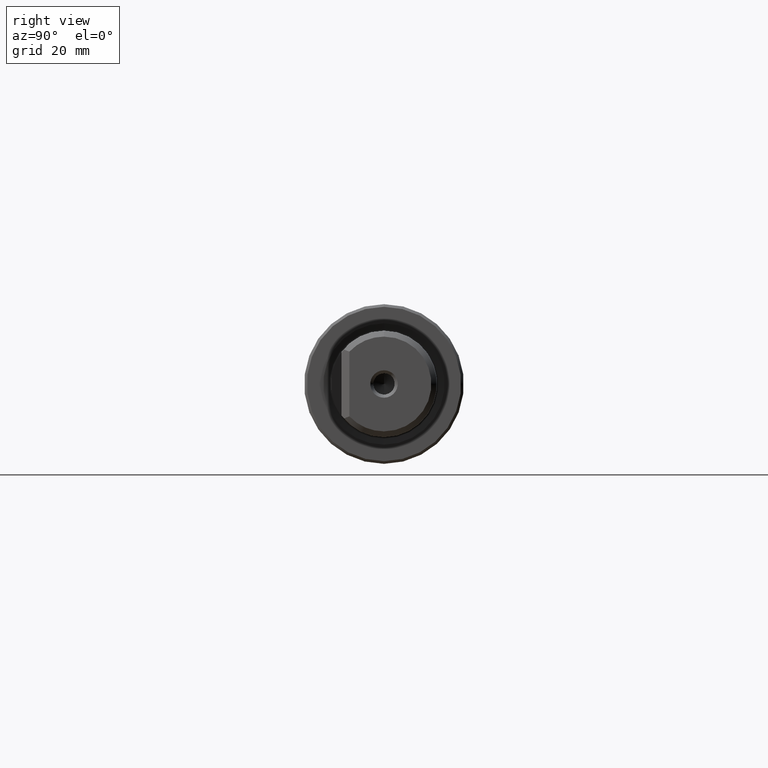
[diagram: clean part render]
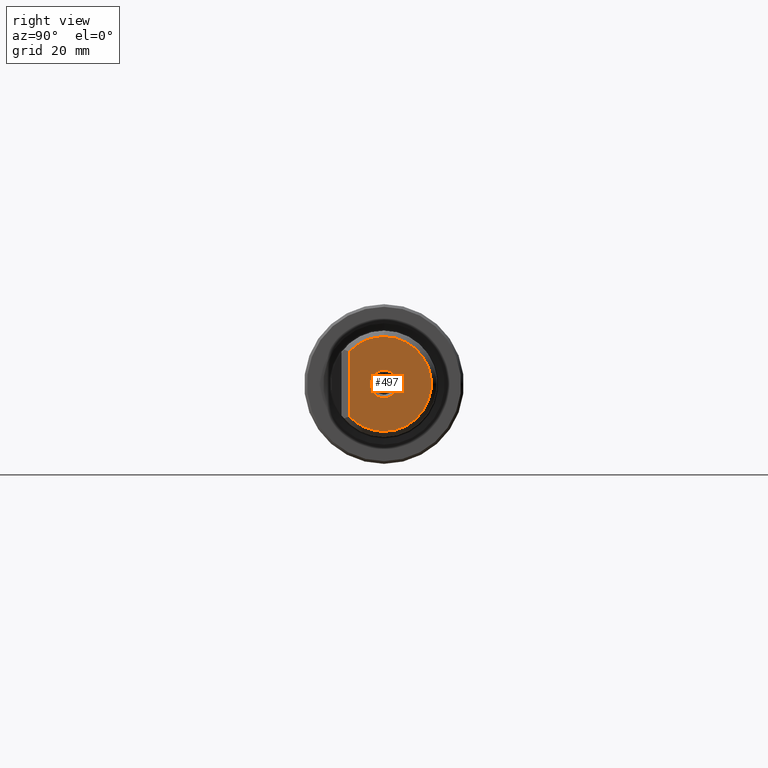
[diagram: same view with one face highlighted and labeled with its STEP entity id]
A machine part, right view. The second image highlights one B-rep face of the part: STEP entity #497.
In plain terms, the highlighted planar face has unit normal (-1, 0, -0).
Its self-contained STEP definition (entity closure, byte-faithful):
#58 = CARTESIAN_POINT ( 'NONE',  ( 130.2500000000000000, 0.0000000000000000000, -2.577350269189618200 ) ) ;
#60 = ORIENTED_EDGE ( 'NONE', *, *, #953, .T. ) ;
#95 = ORIENTED_EDGE ( 'NONE', *, *, #727, .F. ) ;
#99 = CIRCLE ( 'NONE', #1233, 2.577350269189618200 ) ;
#127 = ORIENTED_EDGE ( 'NONE', *, *, #743, .T. ) ;
#129 = EDGE_LOOP ( 'NONE', ( #127, #60 ) ) ;
#164 = DIRECTION ( 'NONE',  ( -1.000000000000000000, -0.0000000000000000000, -0.0000000000000000000 ) ) ;
#171 = VERTEX_POINT ( 'NONE', #1126 ) ;
#184 = CARTESIAN_POINT ( 'NONE',  ( 130.2500000000000000, 0.0000000000000000000, 0.0000000000000000000 ) ) ;
#189 = DIRECTION ( 'NONE',  ( -1.000000000000000000, -0.0000000000000000000, -0.0000000000000000000 ) ) ;
#213 = DIRECTION ( 'NONE',  ( -1.000000000000000000, -0.0000000000000000000, -0.0000000000000000000 ) ) ;
#260 = CARTESIAN_POINT ( 'NONE',  ( 130.2500000000000000, 0.0000000000000000000, 8.900000000000016300 ) ) ;
#270 = DIRECTION ( 'NONE',  ( 0.0000000000000000000, 0.0000000000000000000, 1.000000000000000000 ) ) ;
#271 = CARTESIAN_POINT ( 'NONE',  ( 130.2500000000000000, 8.900000000000016300, 0.0000000000000000000 ) ) ;
#300 = ORIENTED_EDGE ( 'NONE', *, *, #1196, .F. ) ;
#312 = ORIENTED_EDGE ( 'NONE', *, *, #565, .F. ) ;
#322 = CARTESIAN_POINT ( 'NONE',  ( 130.2500000000000000, 0.0000000000000000000, 0.0000000000000000000 ) ) ;
#324 = CARTESIAN_POINT ( 'NONE',  ( 130.2500000000000000, -6.500000000000021300, -13.99999999999999800 ) ) ;
#326 = CIRCLE ( 'NONE', #583, 8.900000000000016300 ) ;
#335 = EDGE_LOOP ( 'NONE', ( #312, #300, #809, #95 ) ) ;
#352 = VERTEX_POINT ( 'NONE', #834 ) ;
#354 = DIRECTION ( 'NONE',  ( 0.0000000000000000000, 0.0000000000000000000, 1.000000000000000000 ) ) ;
#359 = CARTESIAN_POINT ( 'NONE',  ( 130.2500000000000000, 0.0000000000000000000, 0.0000000000000000000 ) ) ;
#373 = FACE_OUTER_BOUND ( 'NONE', #335, .T. ) ;
#399 = CARTESIAN_POINT ( 'NONE',  ( 130.2500000000000000, 0.0000000000000000000, 0.0000000000000000000 ) ) ;
#401 = CARTESIAN_POINT ( 'NONE',  ( 130.2500000000000000, -6.500000000000021300, 6.079473661428262500 ) ) ;
#427 = CIRCLE ( 'NONE', #451, 2.577350269189618200 ) ;
#451 = AXIS2_PLACEMENT_3D ( 'NONE', #184, #189, #354 ) ;
#458 = VERTEX_POINT ( 'NONE', #260 ) ;
#477 = VERTEX_POINT ( 'NONE', #401 ) ;
#497 = ADVANCED_FACE ( 'NONE', ( #545, #373 ), #975, .F. ) ;
#545 = FACE_BOUND ( 'NONE', #129, .T. ) ;
#550 = DIRECTION ( 'NONE',  ( -0.0000000000000000000, 0.0000000000000000000, 1.000000000000000000 ) ) ;
#565 = EDGE_CURVE ( 'NONE', #477, #458, #1200, .T. ) ;
#583 = AXIS2_PLACEMENT_3D ( 'NONE', #1210, #164, #1177 ) ;
#600 = VERTEX_POINT ( 'NONE', #58 ) ;
#609 = VERTEX_POINT ( 'NONE', #741 ) ;
#629 = DIRECTION ( 'NONE',  ( -1.000000000000000000, -0.0000000000000000000, -0.0000000000000000000 ) ) ;
#635 = DIRECTION ( 'NONE',  ( -1.000000000000000000, -0.0000000000000000000, -0.0000000000000000000 ) ) ;
#727 = EDGE_CURVE ( 'NONE', #458, #352, #326, .T. ) ;
#741 = CARTESIAN_POINT ( 'NONE',  ( 130.2500000000000000, 3.156343757444634300E-016, 2.577350269189618200 ) ) ;
#743 = EDGE_CURVE ( 'NONE', #600, #609, #99, .T. ) ;
#772 = DIRECTION ( 'NONE',  ( -1.000000000000000000, 0.0000000000000000000, -0.0000000000000000000 ) ) ;
#801 = CIRCLE ( 'NONE', #937, 8.900000000000016300 ) ;
#809 = ORIENTED_EDGE ( 'NONE', *, *, #816, .F. ) ;
#816 = EDGE_CURVE ( 'NONE', #352, #171, #801, .T. ) ;
#834 = CARTESIAN_POINT ( 'NONE',  ( 130.2500000000000000, 1.151167991198513900E-015, -8.900000000000016300 ) ) ;
#888 = DIRECTION ( 'NONE',  ( 0.0000000000000000000, 0.0000000000000000000, 1.000000000000000000 ) ) ;
#937 = AXIS2_PLACEMENT_3D ( 'NONE', #322, #213, #888 ) ;
#953 = EDGE_CURVE ( 'NONE', #609, #600, #427, .T. ) ;
#975 = PLANE ( 'NONE',  #1061 ) ;
#1056 = VECTOR ( 'NONE', #1105, 1000.000000000000000 ) ;
#1061 = AXIS2_PLACEMENT_3D ( 'NONE', #271, #772, #550 ) ;
#1067 = DIRECTION ( 'NONE',  ( 0.0000000000000000000, 0.0000000000000000000, 1.000000000000000000 ) ) ;
#1071 = LINE ( 'NONE', #324, #1056 ) ;
#1105 = DIRECTION ( 'NONE',  ( -0.0000000000000000000, -0.0000000000000000000, 1.000000000000000000 ) ) ;
#1126 = CARTESIAN_POINT ( 'NONE',  ( 130.2500000000000000, -6.500000000000021300, -6.079473661428267800 ) ) ;
#1177 = DIRECTION ( 'NONE',  ( 0.0000000000000000000, 0.0000000000000000000, 1.000000000000000000 ) ) ;
#1196 = EDGE_CURVE ( 'NONE', #171, #477, #1071, .T. ) ;
#1200 = CIRCLE ( 'NONE', #1205, 8.900000000000016300 ) ;
#1205 = AXIS2_PLACEMENT_3D ( 'NONE', #399, #635, #1067 ) ;
#1210 = CARTESIAN_POINT ( 'NONE',  ( 130.2500000000000000, 0.0000000000000000000, 0.0000000000000000000 ) ) ;
#1233 = AXIS2_PLACEMENT_3D ( 'NONE', #359, #629, #270 ) ;